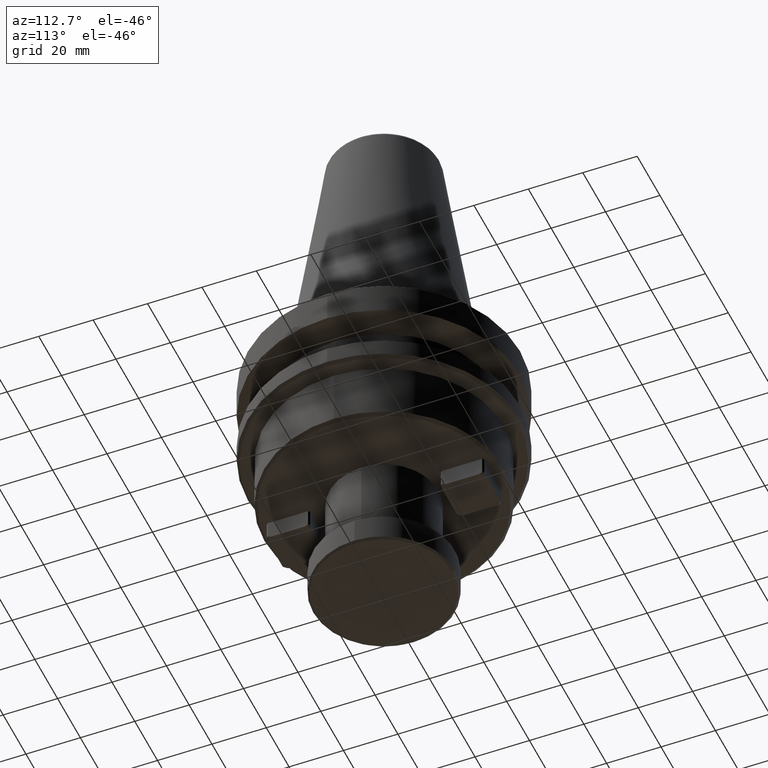
[diagram: clean part render]
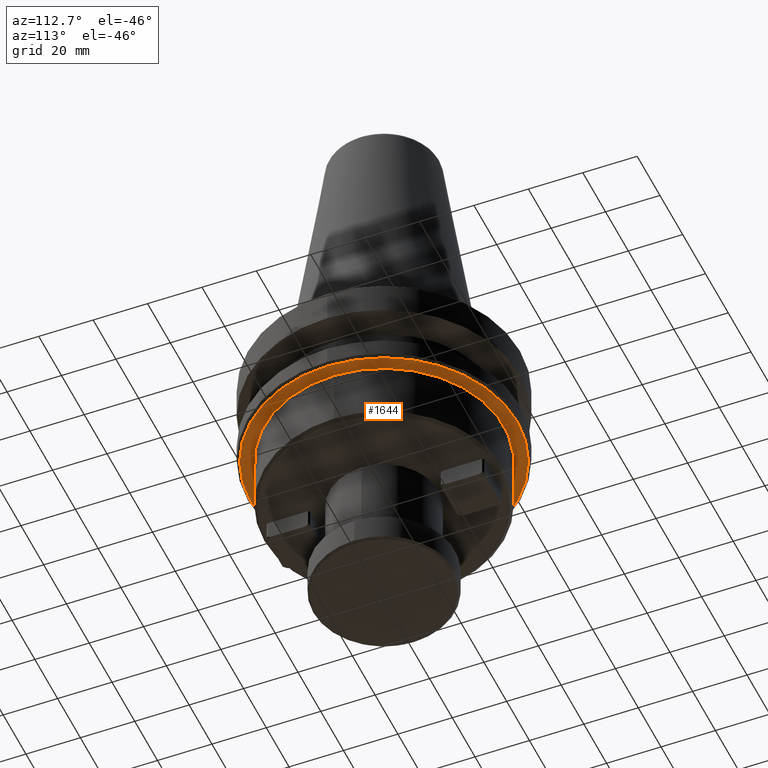
[diagram: same view with one face highlighted and labeled with its STEP entity id]
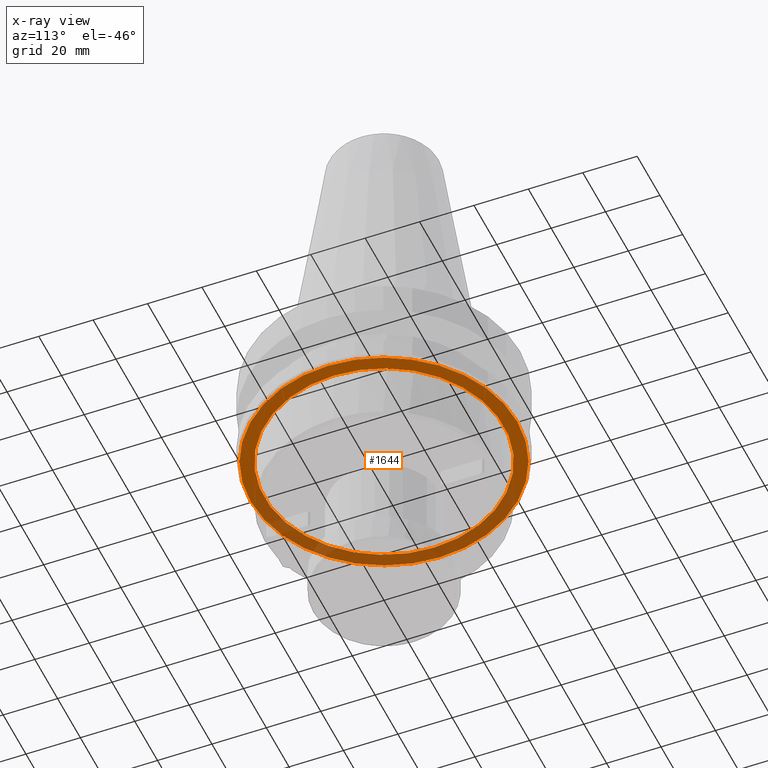
[diagram: x-ray of the same camera — body ghosted, the highlighted face saturated]
A machine part, auxiliary view. The second image highlights one B-rep face of the part: STEP entity #1644.
The next image is the same camera in x-ray: the body ghosted, the highlighted face saturated — about 39% of this face is hidden behind the body in this view.
In plain terms, the highlighted planar face has unit normal (0, 0, 1).
Its self-contained STEP definition (entity closure, byte-faithful):
#22 = EDGE_LOOP ( 'NONE', ( #605, #1826 ) ) ;
#34 = DIRECTION ( 'NONE',  ( 1.000000000000000000, 0.0000000000000000000, 0.0000000000000000000 ) ) ;
#36 = DIRECTION ( 'NONE',  ( -0.0000000000000000000, -0.0000000000000000000, -1.000000000000000000 ) ) ;
#38 = CARTESIAN_POINT ( 'NONE',  ( 0.0000000000000000000, 0.0000000000000000000, -37.99999999999999300 ) ) ;
#104 = VERTEX_POINT ( 'NONE', #2113 ) ;
#145 = CARTESIAN_POINT ( 'NONE',  ( 49.00000000000000000, 0.0000000000000000000, -38.00000000000002100 ) ) ;
#158 = FACE_OUTER_BOUND ( 'NONE', #22, .T. ) ;
#159 = DIRECTION ( 'NONE',  ( 0.0000000000000000000, -0.0000000000000000000, 1.000000000000000000 ) ) ;
#165 = AXIS2_PLACEMENT_3D ( 'NONE', #38, #36, #34 ) ;
#174 = ORIENTED_EDGE ( 'NONE', *, *, #1340, .F. ) ;
#178 = EDGE_LOOP ( 'NONE', ( #2712, #174 ) ) ;
#252 = AXIS2_PLACEMENT_3D ( 'NONE', #2590, #2530, #735 ) ;
#253 = CIRCLE ( 'NONE', #750, 49.00000000000000000 ) ;
#488 = EDGE_CURVE ( 'NONE', #1218, #631, #697, .T. ) ;
#605 = ORIENTED_EDGE ( 'NONE', *, *, #488, .F. ) ;
#631 = VERTEX_POINT ( 'NONE', #724 ) ;
#697 = CIRCLE ( 'NONE', #2782, 49.00000000000000000 ) ;
#718 = FACE_BOUND ( 'NONE', #178, .T. ) ;
#724 = CARTESIAN_POINT ( 'NONE',  ( -49.00000000000000000, 6.062001655779398500E-015, -38.00000000000002100 ) ) ;
#735 = DIRECTION ( 'NONE',  ( 1.000000000000000000, 0.0000000000000000000, 0.0000000000000000000 ) ) ;
#750 = AXIS2_PLACEMENT_3D ( 'NONE', #1157, #159, #2466 ) ;
#833 = DIRECTION ( 'NONE',  ( 1.000000000000000000, 0.0000000000000000000, 0.0000000000000000000 ) ) ;
#835 = DIRECTION ( 'NONE',  ( 0.0000000000000000000, -0.0000000000000000000, 1.000000000000000000 ) ) ;
#837 = CARTESIAN_POINT ( 'NONE',  ( 0.0000000000000000000, 0.0000000000000000000, -38.00000000000002100 ) ) ;
#1157 = CARTESIAN_POINT ( 'NONE',  ( 0.0000000000000000000, 0.0000000000000000000, -38.00000000000002100 ) ) ;
#1218 = VERTEX_POINT ( 'NONE', #145 ) ;
#1261 = CARTESIAN_POINT ( 'NONE',  ( -44.00000000000000000, 5.388445916248353600E-015, -37.99999999999999300 ) ) ;
#1340 = EDGE_CURVE ( 'NONE', #2347, #104, #1625, .T. ) ;
#1365 = CIRCLE ( 'NONE', #252, 44.00000000000000000 ) ;
#1487 = EDGE_CURVE ( 'NONE', #104, #2347, #1365, .T. ) ;
#1513 = EDGE_CURVE ( 'NONE', #631, #1218, #253, .T. ) ;
#1625 = CIRCLE ( 'NONE', #165, 44.00000000000000000 ) ;
#1644 = ADVANCED_FACE ( 'NONE', ( #158, #718 ), #2513, .F. ) ;
#1728 = AXIS2_PLACEMENT_3D ( 'NONE', #2562, #2791, #2475 ) ;
#1826 = ORIENTED_EDGE ( 'NONE', *, *, #1513, .F. ) ;
#2113 = CARTESIAN_POINT ( 'NONE',  ( 44.00000000000000000, 0.0000000000000000000, -37.99999999999999300 ) ) ;
#2347 = VERTEX_POINT ( 'NONE', #1261 ) ;
#2466 = DIRECTION ( 'NONE',  ( 1.000000000000000000, 0.0000000000000000000, 0.0000000000000000000 ) ) ;
#2475 = DIRECTION ( 'NONE',  ( 1.000000000000000000, 0.0000000000000000000, -0.0000000000000000000 ) ) ;
#2513 = PLANE ( 'NONE',  #1728 ) ;
#2530 = DIRECTION ( 'NONE',  ( -0.0000000000000000000, -0.0000000000000000000, -1.000000000000000000 ) ) ;
#2562 = CARTESIAN_POINT ( 'NONE',  ( 0.0000000000000000000, 49.00000000000000000, -38.00000000000000700 ) ) ;
#2590 = CARTESIAN_POINT ( 'NONE',  ( 0.0000000000000000000, 0.0000000000000000000, -37.99999999999999300 ) ) ;
#2712 = ORIENTED_EDGE ( 'NONE', *, *, #1487, .F. ) ;
#2782 = AXIS2_PLACEMENT_3D ( 'NONE', #837, #835, #833 ) ;
#2791 = DIRECTION ( 'NONE',  ( 0.0000000000000000000, 0.0000000000000000000, 1.000000000000000000 ) ) ;